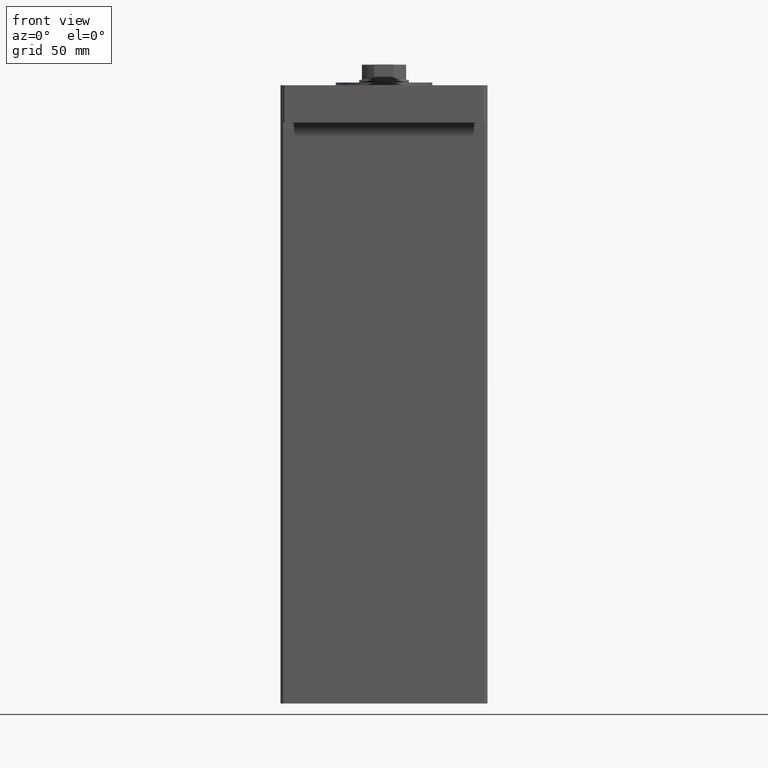
[diagram: clean part render]
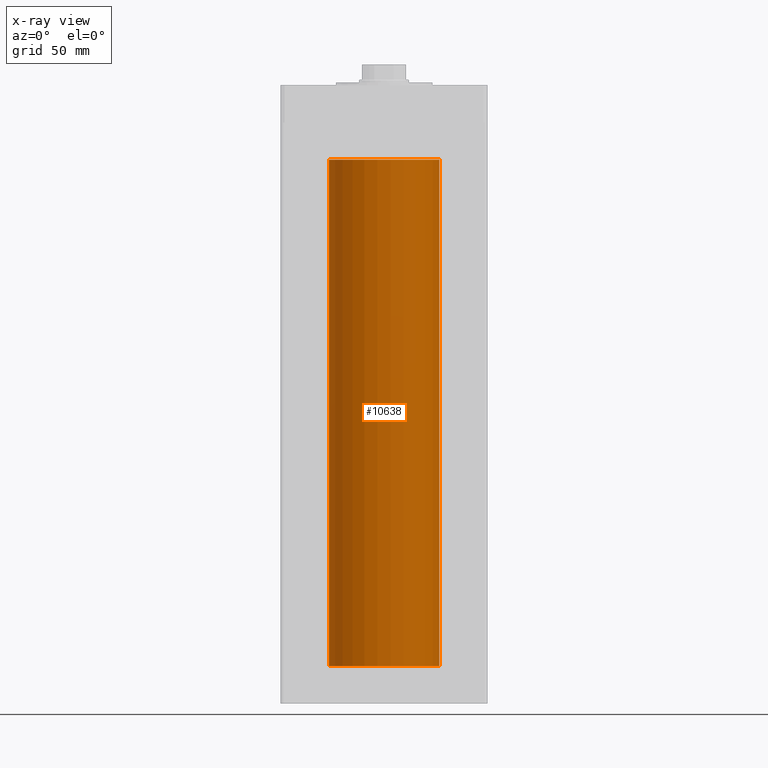
[diagram: x-ray — body ghosted, one internal face saturated and labeled with its STEP entity id]
A machine part, front view, then the same camera in x-ray: the body is ghosted and one INTERNAL B-rep face — a face not visible from any outside direction — is saturated and labeled: STEP entity #10638.
In plain terms, the highlighted cylindrical surface (partial cylindrical patch) has radius 40 mm, axis along (-0, -0, -1).
Its self-contained STEP definition (entity closure, byte-faithful):
#927 = CIRCLE ( 'NONE', #5195, 40.00000000000000000 ) ;
#1544 = VECTOR ( 'NONE', #12701, 1000.000000000000000 ) ;
#1705 = ORIENTED_EDGE ( 'NONE', *, *, #24761, .F. ) ;
#2266 = DIRECTION ( 'NONE',  ( -0.000000000000000000, 0.000000000000000000, 1.000000000000000000 ) ) ;
#3772 = CARTESIAN_POINT ( 'NONE',  ( 0.000000000000000000, 0.000000000000000000, 367.0000000000000000 ) ) ;
#4924 = EDGE_CURVE ( 'NONE', #51540, #39224, #35036, .T. ) ;
#5195 = AXIS2_PLACEMENT_3D ( 'NONE', #11996, #45088, #23561 ) ;
#6046 = DIRECTION ( 'NONE',  ( 1.000000000000000000, 0.000000000000000000, 0.000000000000000000 ) ) ;
#8114 = LINE ( 'NONE', #33409, #1544 ) ;
#8612 = DIRECTION ( 'NONE',  ( -0.000000000000000000, -0.000000000000000000, -1.000000000000000000 ) ) ;
#9544 = CIRCLE ( 'NONE', #16426, 40.00000000000000000 ) ;
#10549 = CARTESIAN_POINT ( 'NONE',  ( 40.00000000000000000, 4.898587196589413026E-15, 367.0000000000000000 ) ) ;
#10606 = CARTESIAN_POINT ( 'NONE',  ( 0.000000000000000000, 0.000000000000000000, 367.0000000000000000 ) ) ;
#10638 = ADVANCED_FACE ( 'NONE', ( #44689 ), #40648, .F. ) ;
#10818 = AXIS2_PLACEMENT_3D ( 'NONE', #3772, #8612, #21534 ) ;
#11303 = ORIENTED_EDGE ( 'NONE', *, *, #4924, .T. ) ;
#11996 = CARTESIAN_POINT ( 'NONE',  ( 0.000000000000000000, 0.000000000000000000, 0.000000000000000000 ) ) ;
#12701 = DIRECTION ( 'NONE',  ( -0.000000000000000000, -0.000000000000000000, -1.000000000000000000 ) ) ;
#16426 = AXIS2_PLACEMENT_3D ( 'NONE', #10606, #2266, #6046 ) ;
#16814 = EDGE_CURVE ( 'NONE', #21942, #24601, #8114, .T. ) ;
#19164 = DIRECTION ( 'NONE',  ( -0.000000000000000000, -0.000000000000000000, -1.000000000000000000 ) ) ;
#19353 = VECTOR ( 'NONE', #19164, 1000.000000000000000 ) ;
#21534 = DIRECTION ( 'NONE',  ( -1.000000000000000000, 0.000000000000000000, 0.000000000000000000 ) ) ;
#21942 = VERTEX_POINT ( 'NONE', #26748 ) ;
#23561 = DIRECTION ( 'NONE',  ( 1.000000000000000000, 0.000000000000000000, 0.000000000000000000 ) ) ;
#24601 = VERTEX_POINT ( 'NONE', #51563 ) ;
#24761 = EDGE_CURVE ( 'NONE', #24601, #39224, #927, .T. ) ;
#26424 = EDGE_CURVE ( 'NONE', #21942, #51540, #9544, .T. ) ;
#26748 = CARTESIAN_POINT ( 'NONE',  ( -40.00000000000000000, 0.000000000000000000, 367.0000000000000000 ) ) ;
#30024 = ORIENTED_EDGE ( 'NONE', *, *, #26424, .T. ) ;
#32988 = CARTESIAN_POINT ( 'NONE',  ( 40.00000000000000000, 4.898587196589413026E-15, 0.000000000000000000 ) ) ;
#33409 = CARTESIAN_POINT ( 'NONE',  ( -40.00000000000000000, 0.000000000000000000, 367.0000000000000000 ) ) ;
#35036 = LINE ( 'NONE', #10549, #19353 ) ;
#39224 = VERTEX_POINT ( 'NONE', #32988 ) ;
#39735 = EDGE_LOOP ( 'NONE', ( #30024, #11303, #1705, #40538 ) ) ;
#40538 = ORIENTED_EDGE ( 'NONE', *, *, #16814, .F. ) ;
#40648 = CYLINDRICAL_SURFACE ( 'NONE', #10818, 40.00000000000000000 ) ;
#44689 = FACE_OUTER_BOUND ( 'NONE', #39735, .T. ) ;
#45088 = DIRECTION ( 'NONE',  ( -0.000000000000000000, 0.000000000000000000, 1.000000000000000000 ) ) ;
#51540 = VERTEX_POINT ( 'NONE', #52191 ) ;
#51563 = CARTESIAN_POINT ( 'NONE',  ( -40.00000000000000000, 0.000000000000000000, 0.000000000000000000 ) ) ;
#52191 = CARTESIAN_POINT ( 'NONE',  ( 40.00000000000000000, 4.898587196589413026E-15, 367.0000000000000000 ) ) ;